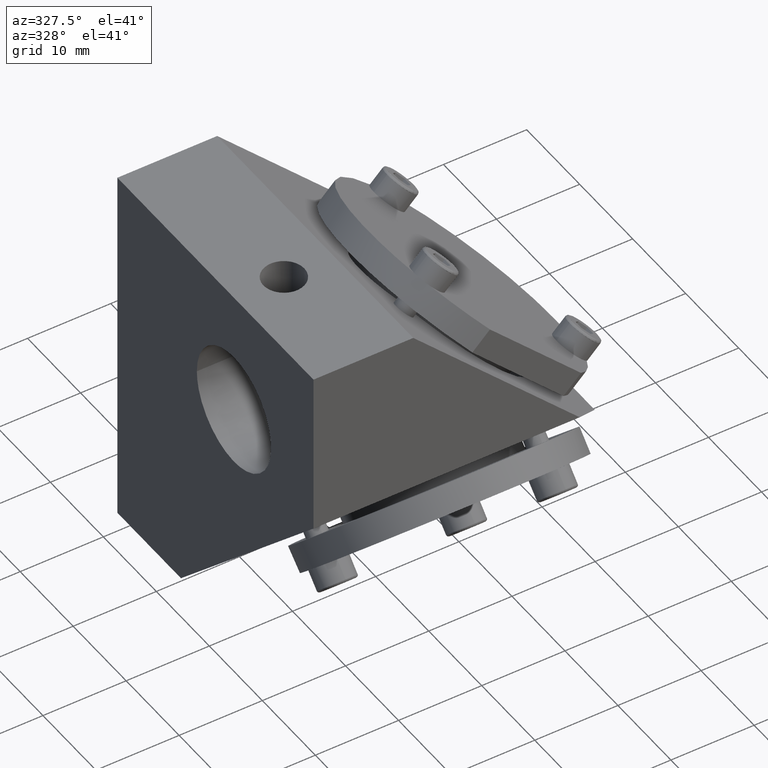
[diagram: clean part render]
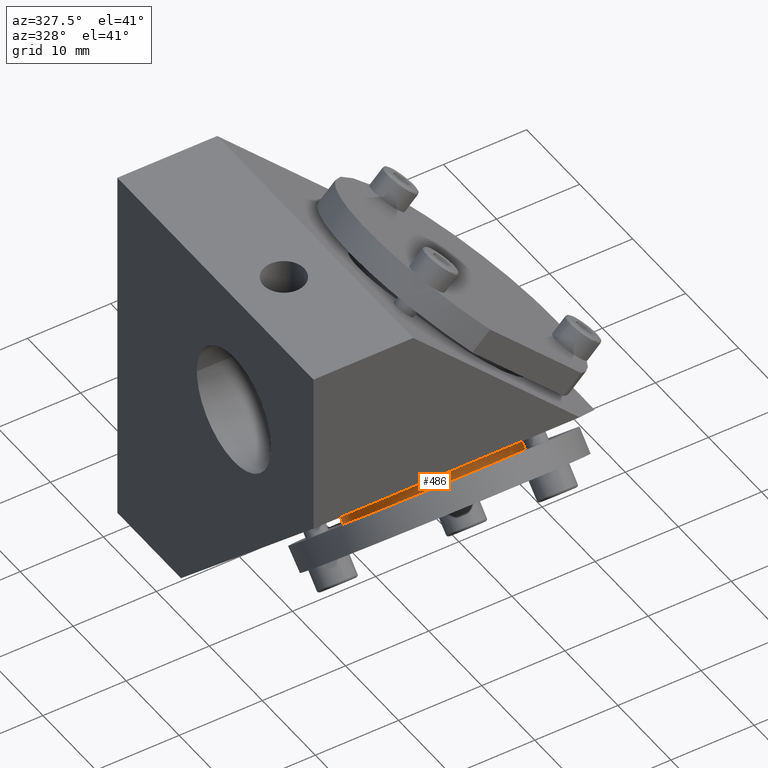
[diagram: same view with one face highlighted and labeled with its STEP entity id]
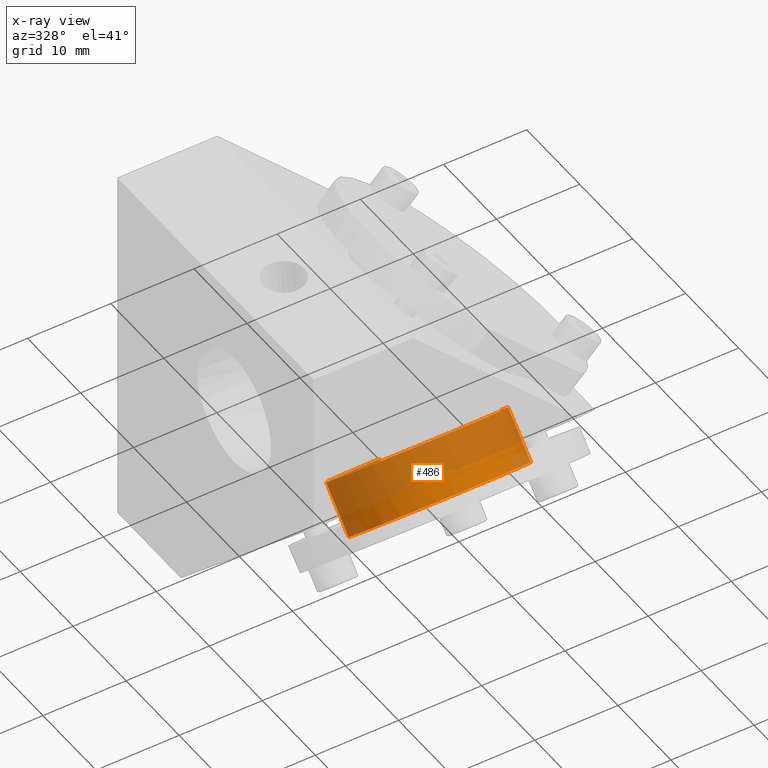
[diagram: x-ray of the same camera — body ghosted, the highlighted face saturated]
A machine part, auxiliary view. The second image highlights one B-rep face of the part: STEP entity #486.
The next image is the same camera in x-ray: the body ghosted, the highlighted face saturated — about 65% of this face is hidden behind the body in this view.
In plain terms, the highlighted face is a freeform B-spline surface patch.
Its self-contained STEP definition (entity closure, byte-faithful):
#107=B_SPLINE_SURFACE_WITH_KNOTS('',1,1,((#15170,#15171),(#15172,#15173)),
 .UNSPECIFIED.,.F.,.F.,.F.,(2,2),(2,2),(-4.98445356650879,28.7159158818213),
(19.5588223666094,55.3410581511173),.UNSPECIFIED.);
#110=B_SPLINE_SURFACE_WITH_KNOTS('',1,1,((#15308,#15309),(#15310,#15311)),
 .UNSPECIFIED.,.F.,.F.,.F.,(2,2),(2,2),(2.45423306431872,32.4525163082529),
(-30.2164475751102,-0.154820863994889),.UNSPECIFIED.);
#486=ADVANCED_FACE('',(#736),#9190,.T.);
#736=FACE_OUTER_BOUND('',#1001,.T.);
#1001=EDGE_LOOP('',(#1801,#1802,#1803,#1804,#1805,#1806));
#1801=ORIENTED_EDGE('',*,*,#7446,.T.);
#1802=ORIENTED_EDGE('',*,*,#7447,.T.);
#1803=ORIENTED_EDGE('',*,*,#7448,.T.);
#1804=ORIENTED_EDGE('',*,*,#7449,.T.);
#1805=ORIENTED_EDGE('',*,*,#7450,.T.);
#1806=ORIENTED_EDGE('',*,*,#7451,.T.);
#3131=PCURVE('',#9190,#4461);
#3132=PCURVE('',#9190,#4462);
#3133=PCURVE('',#9190,#4463);
#3134=PCURVE('',#9190,#4464);
#3135=PCURVE('',#9190,#4465);
#3136=PCURVE('',#9190,#4466);
#3138=PCURVE('',#9191,#4468);
#3140=PCURVE('',#9191,#4470);
#3209=PCURVE('',#107,#4539);
#3210=PCURVE('',#107,#4540);
#3271=PCURVE('',#110,#4601);
#3272=PCURVE('',#110,#4602);
#4461=DEFINITIONAL_REPRESENTATION('',(#5671),#23564);
#4462=DEFINITIONAL_REPRESENTATION('',(#5672),#23564);
#4463=DEFINITIONAL_REPRESENTATION('',(#5673),#23564);
#4464=DEFINITIONAL_REPRESENTATION('',(#5674),#23564);
#4465=DEFINITIONAL_REPRESENTATION('',(#5675),#23564);
#4466=DEFINITIONAL_REPRESENTATION('',(#5676),#23564);
#4468=DEFINITIONAL_REPRESENTATION('',(#5678),#23564);
#4470=DEFINITIONAL_REPRESENTATION('',(#5680),#23564);
#4539=DEFINITIONAL_REPRESENTATION('',(#8333),#23564);
#4540=DEFINITIONAL_REPRESENTATION('',(#8334),#23564);
#4601=DEFINITIONAL_REPRESENTATION('',(#8362),#23564);
#4602=DEFINITIONAL_REPRESENTATION('',(#8363),#23564);
#5671=B_SPLINE_CURVE_WITH_KNOTS('',1,(#18155,#18156),.UNSPECIFIED.,.F.,
 .F.,(2,2),(-62.8318530717959,-31.4159265358979),.UNSPECIFIED.);
#5672=B_SPLINE_CURVE_WITH_KNOTS('',1,(#18160,#18161),.UNSPECIFIED.,.F.,
 .F.,(2,2),(-31.4159265358979,-15.707963267949),.UNSPECIFIED.);
#5673=B_SPLINE_CURVE_WITH_KNOTS('',1,(#18164,#18165),.UNSPECIFIED.,.F.,
 .F.,(2,2),(12.7697056274848,18.7697056274848),.UNSPECIFIED.);
#5674=B_SPLINE_CURVE_WITH_KNOTS('',1,(#18169,#18170),.UNSPECIFIED.,.F.,
 .F.,(2,2),(-47.1238898038469,-31.415926535898),.UNSPECIFIED.);
#5675=B_SPLINE_CURVE_WITH_KNOTS('',1,(#18176,#18177),.UNSPECIFIED.,.F.,
 .F.,(2,2),(-31.415926535898,0.),.UNSPECIFIED.);
#5676=B_SPLINE_CURVE_WITH_KNOTS('',1,(#18180,#18181),.UNSPECIFIED.,.F.,
 .F.,(2,2),(0.,6.),.UNSPECIFIED.);
#5678=B_SPLINE_CURVE_WITH_KNOTS('',1,(#18187,#18188),.UNSPECIFIED.,.F.,
 .F.,(2,2),(12.7697056274848,18.7697056274848),.UNSPECIFIED.);
#5680=B_SPLINE_CURVE_WITH_KNOTS('',1,(#18194,#18195),.UNSPECIFIED.,.F.,
 .F.,(2,2),(0.,6.),.UNSPECIFIED.);
#6736=SURFACE_CURVE('',#8276,(#3131,#3272),.PCURVE_S1.);
#6737=SURFACE_CURVE('',#8277,(#3132,#3271),.PCURVE_S1.);
#6738=SURFACE_CURVE('',#8278,(#3133,#3138),.PCURVE_S1.);
#6739=SURFACE_CURVE('',#8279,(#3134,#3210),.PCURVE_S1.);
#6740=SURFACE_CURVE('',#8280,(#3135,#3209),.PCURVE_S1.);
#6741=SURFACE_CURVE('',#8281,(#3136,#3140),.PCURVE_S1.);
#7446=EDGE_CURVE('',#8878,#8879,#6736,.T.);
#7447=EDGE_CURVE('',#8879,#8880,#6737,.T.);
#7448=EDGE_CURVE('',#8880,#8881,#6738,.T.);
#7449=EDGE_CURVE('',#8881,#8882,#6739,.T.);
#7450=EDGE_CURVE('',#8882,#8883,#6740,.T.);
#7451=EDGE_CURVE('',#8883,#8878,#6741,.T.);
#8276=(
BOUNDED_CURVE()
B_SPLINE_CURVE(2,(#18150,#18151,#18152,#18153,#18154),.UNSPECIFIED.,.F.,
 .F.)
B_SPLINE_CURVE_WITH_KNOTS((3,2,3),(-62.8318530717959,-47.1238898038469,
-31.4159265358979),.UNSPECIFIED.)
CURVE()
GEOMETRIC_REPRESENTATION_ITEM()
RATIONAL_B_SPLINE_CURVE((1.,0.707106781186546,1.,0.707106781186546,1.))
REPRESENTATION_ITEM('')
);
#8277=(
BOUNDED_CURVE()
B_SPLINE_CURVE(2,(#18157,#18158,#18159),.UNSPECIFIED.,.F.,.F.)
B_SPLINE_CURVE_WITH_KNOTS((3,3),(-31.4159265358979,-15.707963267949),
 .UNSPECIFIED.)
CURVE()
GEOMETRIC_REPRESENTATION_ITEM()
RATIONAL_B_SPLINE_CURVE((1.,0.707106781186546,1.))
REPRESENTATION_ITEM('')
);
#8278=(
BOUNDED_CURVE()
B_SPLINE_CURVE(1,(#18162,#18163),.UNSPECIFIED.,.F.,.F.)
B_SPLINE_CURVE_WITH_KNOTS((2,2),(12.7697056274848,18.7697056274848),
 .UNSPECIFIED.)
CURVE()
GEOMETRIC_REPRESENTATION_ITEM()
RATIONAL_B_SPLINE_CURVE((1.,1.))
REPRESENTATION_ITEM('')
);
#8279=(
BOUNDED_CURVE()
B_SPLINE_CURVE(2,(#18166,#18167,#18168),.UNSPECIFIED.,.F.,.F.)
B_SPLINE_CURVE_WITH_KNOTS((3,3),(-47.1238898038469,-31.415926535898),
 .UNSPECIFIED.)
CURVE()
GEOMETRIC_REPRESENTATION_ITEM()
RATIONAL_B_SPLINE_CURVE((1.,0.707106781186548,1.))
REPRESENTATION_ITEM('')
);
#8280=(
BOUNDED_CURVE()
B_SPLINE_CURVE(2,(#18171,#18172,#18173,#18174,#18175),.UNSPECIFIED.,.F.,
 .F.)
B_SPLINE_CURVE_WITH_KNOTS((3,2,3),(-31.415926535898,-15.707963267949,0.),
 .UNSPECIFIED.)
CURVE()
GEOMETRIC_REPRESENTATION_ITEM()
RATIONAL_B_SPLINE_CURVE((1.,0.707106781186545,1.,0.707106781186545,1.))
REPRESENTATION_ITEM('')
);
#8281=(
BOUNDED_CURVE()
B_SPLINE_CURVE(1,(#18178,#18179),.UNSPECIFIED.,.F.,.F.)
B_SPLINE_CURVE_WITH_KNOTS((2,2),(0.,6.),.UNSPECIFIED.)
CURVE()
GEOMETRIC_REPRESENTATION_ITEM()
RATIONAL_B_SPLINE_CURVE((1.,1.))
REPRESENTATION_ITEM('')
);
#8333=(
BOUNDED_CURVE()
B_SPLINE_CURVE(2,(#18495,#18496,#18497,#18498,#18499),.UNSPECIFIED.,.F.,
 .F.)
B_SPLINE_CURVE_WITH_KNOTS((3,2,3),(-31.415926535898,-15.707963267949,0.),
 .UNSPECIFIED.)
CURVE()
GEOMETRIC_REPRESENTATION_ITEM()
RATIONAL_B_SPLINE_CURVE((1.,0.707106781186545,1.,0.707106781186545,1.))
REPRESENTATION_ITEM('')
);
#8334=(
BOUNDED_CURVE()
B_SPLINE_CURVE(2,(#18500,#18501,#18502),.UNSPECIFIED.,.F.,.F.)
B_SPLINE_CURVE_WITH_KNOTS((3,3),(-47.1238898038469,-31.415926535898),
 .UNSPECIFIED.)
CURVE()
GEOMETRIC_REPRESENTATION_ITEM()
RATIONAL_B_SPLINE_CURVE((1.,0.707106781186546,1.))
REPRESENTATION_ITEM('')
);
#8362=(
BOUNDED_CURVE()
B_SPLINE_CURVE(2,(#18843,#18844,#18845),.UNSPECIFIED.,.F.,.F.)
B_SPLINE_CURVE_WITH_KNOTS((3,3),(-31.4159265358979,-15.707963267949),
 .UNSPECIFIED.)
CURVE()
GEOMETRIC_REPRESENTATION_ITEM()
RATIONAL_B_SPLINE_CURVE((1.,0.707106781186546,1.))
REPRESENTATION_ITEM('')
);
#8363=(
BOUNDED_CURVE()
B_SPLINE_CURVE(2,(#18846,#18847,#18848,#18849,#18850),.UNSPECIFIED.,.F.,
 .F.)
B_SPLINE_CURVE_WITH_KNOTS((3,2,3),(-62.8318530717959,-47.1238898038469,
-31.4159265358979),.UNSPECIFIED.)
CURVE()
GEOMETRIC_REPRESENTATION_ITEM()
RATIONAL_B_SPLINE_CURVE((1.,0.707106781186546,1.,0.707106781186546,1.))
REPRESENTATION_ITEM('')
);
#8878=VERTEX_POINT('',#16044);
#8879=VERTEX_POINT('',#16045);
#8880=VERTEX_POINT('',#16046);
#8881=VERTEX_POINT('',#16047);
#8882=VERTEX_POINT('',#16048);
#8883=VERTEX_POINT('',#16049);
#9190=(
BOUNDED_SURFACE()
B_SPLINE_SURFACE(2,1,((#14968,#14969),(#14970,#14971),(#14972,#14973),(#14974,
#14975),(#14976,#14977),(#14978,#14979),(#14980,#14981),(#14982,#14983),
(#14984,#14985)),.UNSPECIFIED.,.T.,.F.,.F.)
B_SPLINE_SURFACE_WITH_KNOTS((3,2,2,2,3),(2,2),(0.,1.5707963267949,3.14159265358979,
4.71238898038469,6.28318530717959),(0.,31.5394112549696),.UNSPECIFIED.)
GEOMETRIC_REPRESENTATION_ITEM()
RATIONAL_B_SPLINE_SURFACE(((1.,1.),(0.707106781186548,0.707106781186548),
(1.,1.),(0.707106781186548,0.707106781186548),(1.,1.),(0.707106781186548,
0.707106781186548),(1.,1.),(0.707106781186548,0.707106781186548),(1.,1.)))
REPRESENTATION_ITEM('')
SURFACE()
);
#9191=(
BOUNDED_SURFACE()
B_SPLINE_SURFACE(2,1,((#14986,#14987),(#14988,#14989),(#14990,#14991),(#14992,
#14993),(#14994,#14995),(#14996,#14997),(#14998,#14999),(#15000,#15001),
(#15002,#15003)),.UNSPECIFIED.,.T.,.F.,.F.)
B_SPLINE_SURFACE_WITH_KNOTS((3,2,2,2,3),(2,2),(0.,1.5707963267949,3.14159265358979,
4.71238898038469,6.28318530717959),(0.,31.5394112549696),.UNSPECIFIED.)
GEOMETRIC_REPRESENTATION_ITEM()
RATIONAL_B_SPLINE_SURFACE(((1.,1.),(0.707106781186548,0.707106781186548),
(1.,1.),(0.707106781186548,0.707106781186548),(1.,1.),(0.707106781186548,
0.707106781186548),(1.,1.),(0.707106781186548,0.707106781186548),(1.,1.)))
REPRESENTATION_ITEM('')
SURFACE()
);
#14968=CARTESIAN_POINT('',(0.880150020915798,54.9358481425347,-11.0754871357601));
#14969=CARTESIAN_POINT('',(0.880150020915795,32.6341165695144,11.2262444372602));
#14970=CARTESIAN_POINT('',(10.8801500209158,54.9358481425347,-11.0754871357601));
#14971=CARTESIAN_POINT('',(10.8801500209158,32.6341165695144,11.2262444372602));
#14972=CARTESIAN_POINT('',(10.8801500209158,62.0069159544002,-4.00441932389459));
#14973=CARTESIAN_POINT('',(10.8801500209158,39.7051843813799,18.2973122491257));
#14974=CARTESIAN_POINT('',(10.8801500209158,69.0779837662657,3.06664848797088));
#14975=CARTESIAN_POINT('',(10.8801500209158,46.7762521932454,25.3683800609912));
#14976=CARTESIAN_POINT('',(0.880150020915799,69.0779837662657,3.06664848797088));
#14977=CARTESIAN_POINT('',(0.880150020915795,46.7762521932454,25.3683800609912));
#14978=CARTESIAN_POINT('',(-9.1198499790842,69.0779837662657,3.06664848797088));
#14979=CARTESIAN_POINT('',(-9.11984997908424,46.7762521932454,25.3683800609912));
#14980=CARTESIAN_POINT('',(-9.1198499790842,62.0069159544002,-4.00441932389459));
#14981=CARTESIAN_POINT('',(-9.11984997908425,39.7051843813799,18.2973122491257));
#14982=CARTESIAN_POINT('',(-9.1198499790842,54.9358481425347,-11.0754871357601));
#14983=CARTESIAN_POINT('',(-9.11984997908425,32.6341165695144,11.2262444372603));
#14984=CARTESIAN_POINT('',(0.880150020915798,54.9358481425347,-11.0754871357601));
#14985=CARTESIAN_POINT('',(0.880150020915795,32.6341165695144,11.2262444372602));
#14986=CARTESIAN_POINT('',(0.880150020915798,54.9358481425347,-11.0754871357601));
#14987=CARTESIAN_POINT('',(0.880150020915795,32.6341165695144,11.2262444372602));
#14988=CARTESIAN_POINT('',(10.8801500209158,54.9358481425347,-11.0754871357601));
#14989=CARTESIAN_POINT('',(10.8801500209158,32.6341165695144,11.2262444372602));
#14990=CARTESIAN_POINT('',(10.8801500209158,62.0069159544002,-4.00441932389459));
#14991=CARTESIAN_POINT('',(10.8801500209158,39.7051843813799,18.2973122491257));
#14992=CARTESIAN_POINT('',(10.8801500209158,69.0779837662657,3.06664848797088));
#14993=CARTESIAN_POINT('',(10.8801500209158,46.7762521932454,25.3683800609912));
#14994=CARTESIAN_POINT('',(0.880150020915799,69.0779837662657,3.06664848797088));
#14995=CARTESIAN_POINT('',(0.880150020915795,46.7762521932454,25.3683800609912));
#14996=CARTESIAN_POINT('',(-9.1198499790842,69.0779837662657,3.06664848797088));
#14997=CARTESIAN_POINT('',(-9.11984997908424,46.7762521932454,25.3683800609912));
#14998=CARTESIAN_POINT('',(-9.1198499790842,62.0069159544002,-4.00441932389459));
#14999=CARTESIAN_POINT('',(-9.11984997908425,39.7051843813799,18.2973122491257));
#15000=CARTESIAN_POINT('',(-9.1198499790842,54.9358481425347,-11.0754871357601));
#15001=CARTESIAN_POINT('',(-9.11984997908425,32.6341165695144,11.2262444372603));
#15002=CARTESIAN_POINT('',(0.880150020915798,54.9358481425347,-11.0754871357601));
#15003=CARTESIAN_POINT('',(0.880150020915795,32.6341165695144,11.2262444372602));
#15170=CARTESIAN_POINT('',(-15.7694342870825,38.3404118316047,-1.12655118655061));
#15171=CARTESIAN_POINT('',(20.0128014974254,38.3404118316047,-1.1265511865506));
#15172=CARTESIAN_POINT('',(-15.7694342870825,62.1701715970108,22.7032085788555));
#15173=CARTESIAN_POINT('',(20.0128014974254,62.1701715970108,22.7032085788555));
#15308=CARTESIAN_POINT('',(-14.8263411309399,64.0131895461034,16.0609451537096));
#15309=CARTESIAN_POINT('',(15.2352855801754,64.0131895461034,16.0609451537096));
#15310=CARTESIAN_POINT('',(-14.8263411309399,42.8012000403628,-5.15104435203108));
#15311=CARTESIAN_POINT('',(15.2352855801754,42.8012000403628,-5.15104435203108));
#16044=CARTESIAN_POINT('',(10.8801500209158,52.9773705114497,5.02512611905593));
#16045=CARTESIAN_POINT('',(-9.11984997908421,52.9773705114497,5.02512611905591));
#16046=CARTESIAN_POINT('',(0.880150020915797,45.9063026995842,-2.04594169280958));
#16047=CARTESIAN_POINT('',(0.880150020915798,41.6636620124649,2.19669899430971));
#16048=CARTESIAN_POINT('',(-9.11984997908421,48.7347298243304,9.26776680617519));
#16049=CARTESIAN_POINT('',(10.8801500209158,48.7347298243305,9.26776680617523));
#18150=CARTESIAN_POINT('',(10.8801500209158,52.9773705114497,5.02512611905593));
#18151=CARTESIAN_POINT('',(10.8801500209159,60.0484383233152,12.0961939309215));
#18152=CARTESIAN_POINT('',(0.880150020915789,60.0484383233152,12.0961939309215));
#18153=CARTESIAN_POINT('',(-9.11984997908428,60.0484383233152,12.0961939309214));
#18154=CARTESIAN_POINT('',(-9.11984997908421,52.9773705114497,5.02512611905591));
#18155=CARTESIAN_POINT('',(1.5707963267949,12.7697056274848));
#18156=CARTESIAN_POINT('',(4.71238898038469,12.7697056274848));
#18157=CARTESIAN_POINT('',(-9.11984997908421,52.9773705114497,5.02512611905591));
#18158=CARTESIAN_POINT('',(-9.11984997908422,45.9063026995842,-2.04594169280959));
#18159=CARTESIAN_POINT('',(0.880150020915797,45.9063026995842,-2.04594169280958));
#18160=CARTESIAN_POINT('',(4.71238898038469,12.7697056274848));
#18161=CARTESIAN_POINT('',(6.28318530717959,12.7697056274848));
#18162=CARTESIAN_POINT('',(0.880150020915797,45.9063026995842,-2.04594169280958));
#18163=CARTESIAN_POINT('',(0.880150020915798,41.6636620124649,2.19669899430971));
#18164=CARTESIAN_POINT('',(6.28318530717959,12.7697056274848));
#18165=CARTESIAN_POINT('',(6.28318530717959,18.7697056274848));
#18166=CARTESIAN_POINT('',(0.880150020915798,41.6636620124649,2.19669899430971));
#18167=CARTESIAN_POINT('',(-9.11984997908422,41.6636620124649,2.19669899430976));
#18168=CARTESIAN_POINT('',(-9.11984997908421,48.7347298243304,9.26776680617519));
#18169=CARTESIAN_POINT('',(6.28318530717959,18.7697056274848));
#18170=CARTESIAN_POINT('',(4.71238898038469,18.7697056274848));
#18171=CARTESIAN_POINT('',(-9.11984997908421,48.7347298243304,9.26776680617519));
#18172=CARTESIAN_POINT('',(-9.11984997908432,55.805797636196,16.3388346180408));
#18173=CARTESIAN_POINT('',(0.880150020915771,55.805797636196,16.3388346180408));
#18174=CARTESIAN_POINT('',(10.8801500209158,55.805797636196,16.3388346180408));
#18175=CARTESIAN_POINT('',(10.8801500209158,48.7347298243305,9.26776680617523));
#18176=CARTESIAN_POINT('',(4.71238898038469,18.7697056274848));
#18177=CARTESIAN_POINT('',(1.57079632679491,18.7697056274848));
#18178=CARTESIAN_POINT('',(10.8801500209158,48.7347298243305,9.26776680617523));
#18179=CARTESIAN_POINT('',(10.8801500209158,52.9773705114497,5.02512611905593));
#18180=CARTESIAN_POINT('',(1.57079632679491,18.7697056274848));
#18181=CARTESIAN_POINT('',(1.5707963267949,12.7697056274848));
#18187=CARTESIAN_POINT('',(0.,12.7697056274848));
#18188=CARTESIAN_POINT('',(0.,18.7697056274848));
#18194=CARTESIAN_POINT('',(1.57079632679491,18.7697056274848));
#18195=CARTESIAN_POINT('',(1.5707963267949,12.7697056274848));
#18495=CARTESIAN_POINT('',(9.7153319104227,26.2084066746077));
#18496=CARTESIAN_POINT('',(19.7153319104229,26.2084066746076));
#18497=CARTESIAN_POINT('',(19.7153319104229,36.2084066746077));
#18498=CARTESIAN_POINT('',(19.7153319104229,46.2084066746078));
#18499=CARTESIAN_POINT('',(9.71533191042278,46.2084066746078));
#18500=CARTESIAN_POINT('',(-0.284668089577315,36.2084066746077));
#18501=CARTESIAN_POINT('',(-0.284668089577321,26.2084066746077));
#18502=CARTESIAN_POINT('',(9.7153319104227,26.2084066746077));
#18843=CARTESIAN_POINT('',(18.0612380150211,-24.5099564232545));
#18844=CARTESIAN_POINT('',(28.0612380150211,-24.5099564232545));
#18845=CARTESIAN_POINT('',(28.0612380150211,-14.5099564232545));
#18846=CARTESIAN_POINT('',(18.0612380150211,-4.5099564232545));
#18847=CARTESIAN_POINT('',(8.06123801502102,-4.5099564232544));
#18848=CARTESIAN_POINT('',(8.06123801502102,-14.5099564232545));
#18849=CARTESIAN_POINT('',(8.06123801502108,-24.5099564232546));
#18850=CARTESIAN_POINT('',(18.0612380150211,-24.5099564232545));
#23564=(
GEOMETRIC_REPRESENTATION_CONTEXT(2)
PARAMETRIC_REPRESENTATION_CONTEXT()
REPRESENTATION_CONTEXT('pspace','')
);